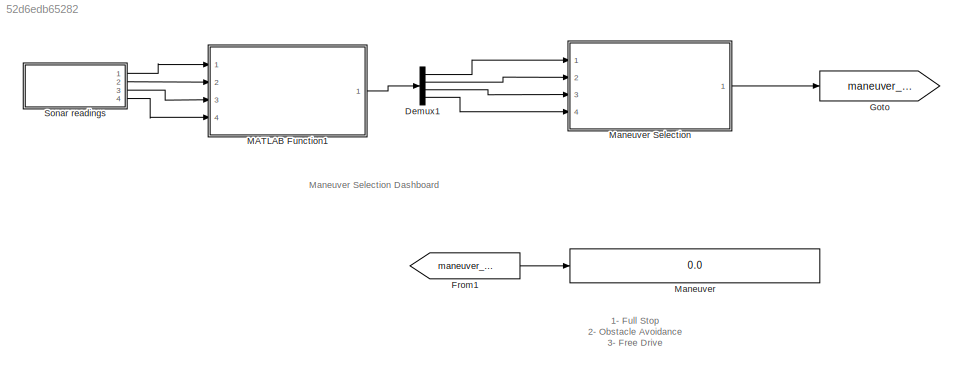
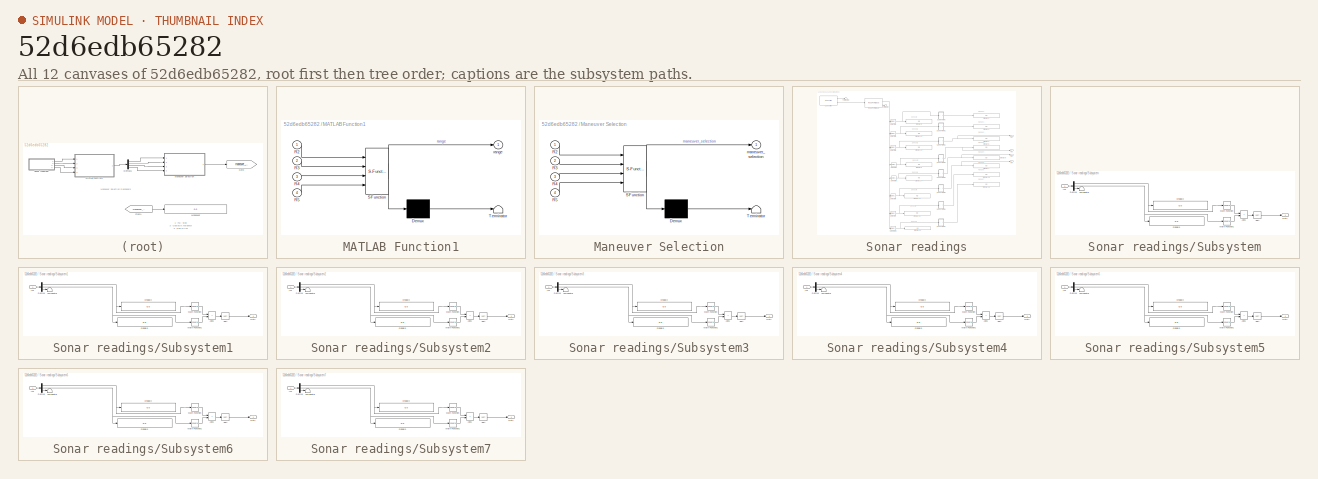
[diagram: thumbnail index - all 12 canvases of the model, root first then tree order]
MODEL slx_52d6edb65282
KIND model
CONFIG AbsTol = auto
CONFIG EnableMultiTasking = off
CONFIG FixedStep = auto
CONFIG MaxStep = auto
CONFIG MinStep = auto
CONFIG RelTol = 1e-3
CONFIG SampleTimeConstraint = Unconstrained
CONFIG SolverName = FixedStepAuto
CONFIG StartTime = 0.0
CONFIG StopTime = inf
BLOCK [Demux] Demux1
  Ports = [1, 4]
BLOCK [From] From1
  GotoTag = maneuver_selection
BLOCK [Goto] Goto
  GotoTag = maneuver_selection
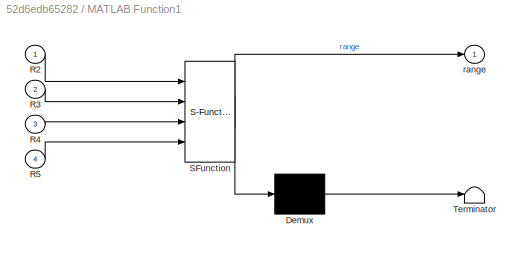
BLOCK [SubSystem] MATLAB Function1
  ErrorFcn = Stateflow.Translate.translate
  PermitHierarchicalResolution = ExplicitOnly
  Ports = [4, 1]
  RequestExecContextInheritance = off
  SFBlockType = MATLAB Function
  TreatAsAtomicUnit = on
BLOCK [Demux] MATLAB Function1/ Demux 
  Outputs = 1
  Ports = [1, 1]
BLOCK [S-Function] MATLAB Function1/ SFunction 
  EnableBusSupport = on
  FunctionName = sf_sfun
  PortCounts = [4 2]
  Ports = [4, 2]
  SFcnIsStateOwnerBlock = off
  SFunctionDeploymentMode = off
  Tag = Stateflow S-Function 6
BLOCK [Terminator] MATLAB Function1/ Terminator 
BLOCK [Inport] MATLAB Function1/R2
BLOCK [Inport] MATLAB Function1/R3
  Port = 2
BLOCK [Inport] MATLAB Function1/R4
  Port = 3
BLOCK [Inport] MATLAB Function1/R5
  Port = 4
BLOCK [Outport] MATLAB Function1/range
BLOCK [Display] Maneuver
  Decimation = 1
  Ports = [1]
BLOCK [SubSystem] Maneuver Selection
  ErrorFcn = Stateflow.Translate.translate
  PermitHierarchicalResolution = ExplicitOnly
  Ports = [4, 1]
  RequestExecContextInheritance = off
  SFBlockType = Chart
  TreatAsAtomicUnit = on
BLOCK [Demux] Maneuver Selection/ Demux 
  Outputs = 1
  Ports = [1, 1]
BLOCK [S-Function] Maneuver Selection/ SFunction 
  EnableBusSupport = on
  FunctionName = sf_sfun
  PortCounts = [4 2]
  Ports = [4, 2]
  SFcnIsStateOwnerBlock = off
  SFunctionDeploymentMode = off
  Tag = Stateflow S-Function 3
BLOCK [Terminator] Maneuver Selection/ Terminator 
BLOCK [Inport] Maneuver Selection/R2
BLOCK [Inport] Maneuver Selection/R3
  Port = 2
BLOCK [Inport] Maneuver Selection/R4
  Port = 3
BLOCK [Inport] Maneuver Selection/R5
  Port = 4
BLOCK [Outport] Maneuver Selection/maneuver_selection
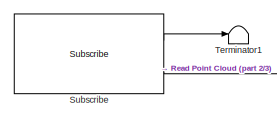
[diagram: Sonar readings - part 1/3, top left region]
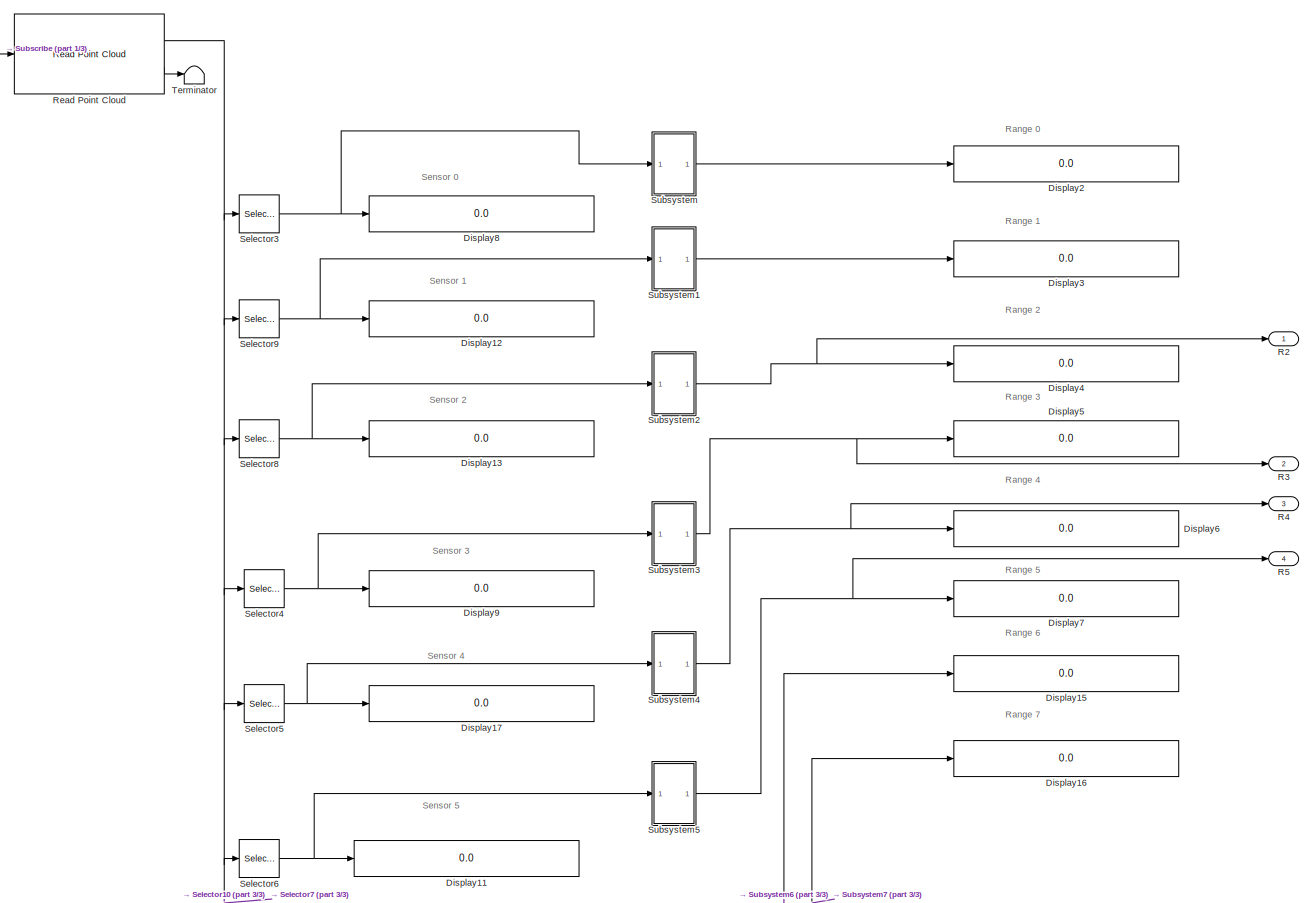
[diagram: Sonar readings - part 2/3, most of the canvas]
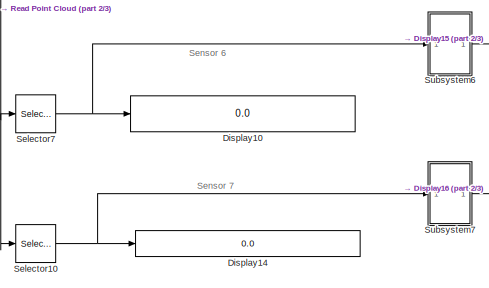
[diagram: Sonar readings - part 3/3, bottom center region]
BLOCK [SubSystem] Sonar readings
  Ports = [0, 4]
  RequestExecContextInheritance = off
BLOCK [Display] Sonar readings/Display10
  Decimation = 1
  Ports = [1]
BLOCK [Display] Sonar readings/Display11
  Decimation = 1
  Ports = [1]
BLOCK [Display] Sonar readings/Display12
  Decimation = 1
  Ports = [1]
BLOCK [Display] Sonar readings/Display13
  Decimation = 1
  Ports = [1]
BLOCK [Display] Sonar readings/Display14
  Decimation = 1
  Ports = [1]
BLOCK [Display] Sonar readings/Display15
  Decimation = 1
  Ports = [1]
BLOCK [Display] Sonar readings/Display16
  Decimation = 1
  Ports = [1]
BLOCK [Display] Sonar readings/Display17
  Decimation = 1
  Ports = [1]
BLOCK [Display] Sonar readings/Display2
  Decimation = 1
  Ports = [1]
BLOCK [Display] Sonar readings/Display3
  Decimation = 1
  Ports = [1]
BLOCK [Display] Sonar readings/Display4
  Decimation = 1
  Ports = [1]
BLOCK [Display] Sonar readings/Display5
  Decimation = 1
  Ports = [1]
BLOCK [Display] Sonar readings/Display6
  Decimation = 1
  Ports = [1]
BLOCK [Display] Sonar readings/Display7
  Decimation = 1
  Ports = [1]
BLOCK [Display] Sonar readings/Display8
  Decimation = 1
  Ports = [1]
BLOCK [Display] Sonar readings/Display9
  Decimation = 1
  Ports = [1]
BLOCK [Outport] Sonar readings/R2
BLOCK [Outport] Sonar readings/R3
  Port = 2
BLOCK [Outport] Sonar readings/R4
  Port = 3
BLOCK [Outport] Sonar readings/R5
  Port = 4
BLOCK [Reference] Sonar readings/Read Point Cloud  REF=robotlib/Read Point Cloud
  Ports = [1, 2]
  SourceBlock = robotlib/Read Point Cloud
  SourceProductBaseCode = RR
  SourceType = ros.slros.internal.block.ReadPointCloud
BLOCK [Selector] Sonar readings/Selector10
  IndexOptions = Starting index (dialog),Starting index (dialog)
  Indices = 8,1
  InputPortWidth = 6
  NumberOfDimensions = 2
  OutputSizes = 1,3
  Ports = [1, 1]
BLOCK [Selector] Sonar readings/Selector3
  IndexOptions = Starting index (dialog),Starting index (dialog)
  Indices = 1,1
  InputPortWidth = 6
  NumberOfDimensions = 2
  OutputSizes = 1,3
  Ports = [1, 1]
BLOCK [Selector] Sonar readings/Selector4
  IndexOptions = Starting index (dialog),Starting index (dialog)
  Indices = 4,1
  InputPortWidth = 6
  NumberOfDimensions = 2
  OutputSizes = 1,3
  Ports = [1, 1]
BLOCK [Selector] Sonar readings/Selector5
  IndexOptions = Starting index (dialog),Starting index (dialog)
  Indices = 5,1
  InputPortWidth = 6
  NumberOfDimensions = 2
  OutputSizes = 1,3
  Ports = [1, 1]
BLOCK [Selector] Sonar readings/Selector6
  IndexOptions = Starting index (dialog),Starting index (dialog)
  Indices = 6,1
  InputPortWidth = 6
  NumberOfDimensions = 2
  OutputSizes = 1,3
  Ports = [1, 1]
BLOCK [Selector] Sonar readings/Selector7
  IndexOptions = Starting index (dialog),Starting index (dialog)
  Indices = 7,1
  InputPortWidth = 6
  NumberOfDimensions = 2
  OutputSizes = 1,3
  Ports = [1, 1]
BLOCK [Selector] Sonar readings/Selector8
  IndexOptions = Starting index (dialog),Starting index (dialog)
  Indices = 3,1
  InputPortWidth = 6
  NumberOfDimensions = 2
  OutputSizes = 1,3
  Ports = [1, 1]
BLOCK [Selector] Sonar readings/Selector9
  IndexOptions = Starting index (dialog),Starting index (dialog)
  Indices = 2,1
  InputPortWidth = 6
  NumberOfDimensions = 2
  OutputSizes = 1,3
  Ports = [1, 1]
BLOCK [Reference] Sonar readings/Subscribe  REF=robotlib/Subscribe
  Ports = [0, 2]
  SourceBlock = robotlib/Subscribe
  SourceProductBaseCode = RR
  SourceType = ROS Subscribe
BLOCK [SubSystem] Sonar readings/Subsystem
  Ports = [1, 1]
  RequestExecContextInheritance = off
BLOCK [Sum] Sonar readings/Subsystem/Add1
  IconShape = rectangular
  Ports = [2, 1]
BLOCK [Demux] Sonar readings/Subsystem/Demux
  Outputs = 3
  Ports = [1, 3]
BLOCK [Display] Sonar readings/Subsystem/Display2
  Decimation = 1
  Ports = [1]
BLOCK [Display] Sonar readings/Subsystem/Display3
  Decimation = 1
  Ports = [1]
BLOCK [Inport] Sonar readings/Subsystem/In1
BLOCK [Math] Sonar readings/Subsystem/Math Function
  Operator = square
  Ports = [1, 1]
BLOCK [Math] Sonar readings/Subsystem/Math Function1
  Operator = square
  Ports = [1, 1]
BLOCK [Outport] Sonar readings/Subsystem/Out1
BLOCK [Sqrt] Sonar readings/Subsystem/Sqrt
BLOCK [Terminator] Sonar readings/Subsystem/Terminator
BLOCK [SubSystem] Sonar readings/Subsystem1
  Ports = [1, 1]
  RequestExecContextInheritance = off
BLOCK [Sum] Sonar readings/Subsystem1/Add1
  IconShape = rectangular
  Ports = [2, 1]
BLOCK [Demux] Sonar readings/Subsystem1/Demux
  Outputs = 3
  Ports = [1, 3]
BLOCK [Display] Sonar readings/Subsystem1/Display2
  Decimation = 1
  Ports = [1]
BLOCK [Display] Sonar readings/Subsystem1/Display3
  Decimation = 1
  Ports = [1]
BLOCK [Inport] Sonar readings/Subsystem1/In1
BLOCK [Math] Sonar readings/Subsystem1/Math Function
  Operator = square
  Ports = [1, 1]
BLOCK [Math] Sonar readings/Subsystem1/Math Function1
  Operator = square
  Ports = [1, 1]
BLOCK [Outport] Sonar readings/Subsystem1/Out1
BLOCK [Sqrt] Sonar readings/Subsystem1/Sqrt
BLOCK [Terminator] Sonar readings/Subsystem1/Terminator
BLOCK [SubSystem] Sonar readings/Subsystem2
  Ports = [1, 1]
  RequestExecContextInheritance = off
BLOCK [Sum] Sonar readings/Subsystem2/Add1
  IconShape = rectangular
  Ports = [2, 1]
BLOCK [Demux] Sonar readings/Subsystem2/Demux
  Outputs = 3
  Ports = [1, 3]
BLOCK [Display] Sonar readings/Subsystem2/Display2
  Decimation = 1
  Ports = [1]
BLOCK [Display] Sonar readings/Subsystem2/Display3
  Decimation = 1
  Ports = [1]
BLOCK [Inport] Sonar readings/Subsystem2/In1
BLOCK [Math] Sonar readings/Subsystem2/Math Function
  Operator = square
  Ports = [1, 1]
BLOCK [Math] Sonar readings/Subsystem2/Math Function1
  Operator = square
  Ports = [1, 1]
BLOCK [Outport] Sonar readings/Subsystem2/Out1
BLOCK [Sqrt] Sonar readings/Subsystem2/Sqrt
BLOCK [Terminator] Sonar readings/Subsystem2/Terminator
BLOCK [SubSystem] Sonar readings/Subsystem3
  Ports = [1, 1]
  RequestExecContextInheritance = off
BLOCK [Sum] Sonar readings/Subsystem3/Add1
  IconShape = rectangular
  Ports = [2, 1]
BLOCK [Demux] Sonar readings/Subsystem3/Demux
  Outputs = 3
  Ports = [1, 3]
BLOCK [Display] Sonar readings/Subsystem3/Display2
  Decimation = 1
  Ports = [1]
BLOCK [Display] Sonar readings/Subsystem3/Display3
  Decimation = 1
  Ports = [1]
BLOCK [Inport] Sonar readings/Subsystem3/In1
BLOCK [Math] Sonar readings/Subsystem3/Math Function
  Operator = square
  Ports = [1, 1]
BLOCK [Math] Sonar readings/Subsystem3/Math Function1
  Operator = square
  Ports = [1, 1]
BLOCK [Outport] Sonar readings/Subsystem3/Out1
BLOCK [Sqrt] Sonar readings/Subsystem3/Sqrt
BLOCK [Terminator] Sonar readings/Subsystem3/Terminator
BLOCK [SubSystem] Sonar readings/Subsystem4
  Ports = [1, 1]
  RequestExecContextInheritance = off
BLOCK [Sum] Sonar readings/Subsystem4/Add1
  IconShape = rectangular
  Ports = [2, 1]
BLOCK [Demux] Sonar readings/Subsystem4/Demux
  Outputs = 3
  Ports = [1, 3]
BLOCK [Display] Sonar readings/Subsystem4/Display2
  Decimation = 1
  Ports = [1]
BLOCK [Display] Sonar readings/Subsystem4/Display3
  Decimation = 1
  Ports = [1]
BLOCK [Inport] Sonar readings/Subsystem4/In1
BLOCK [Math] Sonar readings/Subsystem4/Math Function
  Operator = square
  Ports = [1, 1]
BLOCK [Math] Sonar readings/Subsystem4/Math Function1
  Operator = square
  Ports = [1, 1]
BLOCK [Outport] Sonar readings/Subsystem4/Out1
BLOCK [Sqrt] Sonar readings/Subsystem4/Sqrt
BLOCK [Terminator] Sonar readings/Subsystem4/Terminator
BLOCK [SubSystem] Sonar readings/Subsystem5
  Ports = [1, 1]
  RequestExecContextInheritance = off
BLOCK [Sum] Sonar readings/Subsystem5/Add1
  IconShape = rectangular
  Ports = [2, 1]
BLOCK [Demux] Sonar readings/Subsystem5/Demux
  Outputs = 3
  Ports = [1, 3]
BLOCK [Display] Sonar readings/Subsystem5/Display2
  Decimation = 1
  Ports = [1]
BLOCK [Display] Sonar readings/Subsystem5/Display3
  Decimation = 1
  Ports = [1]
BLOCK [Inport] Sonar readings/Subsystem5/In1
BLOCK [Math] Sonar readings/Subsystem5/Math Function
  Operator = square
  Ports = [1, 1]
BLOCK [Math] Sonar readings/Subsystem5/Math Function1
  Operator = square
  Ports = [1, 1]
BLOCK [Outport] Sonar readings/Subsystem5/Out1
BLOCK [Sqrt] Sonar readings/Subsystem5/Sqrt
BLOCK [Terminator] Sonar readings/Subsystem5/Terminator
BLOCK [SubSystem] Sonar readings/Subsystem6
  Ports = [1, 1]
  RequestExecContextInheritance = off
BLOCK [Sum] Sonar readings/Subsystem6/Add1
  IconShape = rectangular
  Ports = [2, 1]
BLOCK [Demux] Sonar readings/Subsystem6/Demux
  Outputs = 3
  Ports = [1, 3]
BLOCK [Display] Sonar readings/Subsystem6/Display2
  Decimation = 1
  Ports = [1]
BLOCK [Display] Sonar readings/Subsystem6/Display3
  Decimation = 1
  Ports = [1]
BLOCK [Inport] Sonar readings/Subsystem6/In1
BLOCK [Math] Sonar readings/Subsystem6/Math Function
  Operator = square
  Ports = [1, 1]
BLOCK [Math] Sonar readings/Subsystem6/Math Function1
  Operator = square
  Ports = [1, 1]
BLOCK [Outport] Sonar readings/Subsystem6/Out1
BLOCK [Sqrt] Sonar readings/Subsystem6/Sqrt
BLOCK [Terminator] Sonar readings/Subsystem6/Terminator
BLOCK [SubSystem] Sonar readings/Subsystem7
  Ports = [1, 1]
  RequestExecContextInheritance = off
BLOCK [Sum] Sonar readings/Subsystem7/Add1
  IconShape = rectangular
  Ports = [2, 1]
BLOCK [Demux] Sonar readings/Subsystem7/Demux
  Outputs = 3
  Ports = [1, 3]
BLOCK [Display] Sonar readings/Subsystem7/Display2
  Decimation = 1
  Ports = [1]
BLOCK [Display] Sonar readings/Subsystem7/Display3
  Decimation = 1
  Ports = [1]
BLOCK [Inport] Sonar readings/Subsystem7/In1
BLOCK [Math] Sonar readings/Subsystem7/Math Function
  Operator = square
  Ports = [1, 1]
BLOCK [Math] Sonar readings/Subsystem7/Math Function1
  Operator = square
  Ports = [1, 1]
BLOCK [Outport] Sonar readings/Subsystem7/Out1
BLOCK [Sqrt] Sonar readings/Subsystem7/Sqrt
BLOCK [Terminator] Sonar readings/Subsystem7/Terminator
BLOCK [Terminator] Sonar readings/Terminator
BLOCK [Terminator] Sonar readings/Terminator1
ANNOTATION (root): 1- Full Stop 2- Obstacle Avoidance 3- Free Drive
ANNOTATION (root): Maneuver Selection Dashboard
ANNOTATION Sonar readings: Range 0
ANNOTATION Sonar readings: Range 1
ANNOTATION Sonar readings: Range 2
ANNOTATION Sonar readings: Range 3
ANNOTATION Sonar readings: Range 4
ANNOTATION Sonar readings: Range 5
ANNOTATION Sonar readings: Range 6
ANNOTATION Sonar readings: Range 7
ANNOTATION Sonar readings: Sensor 0
ANNOTATION Sonar readings: Sensor 1
ANNOTATION Sonar readings: Sensor 2
ANNOTATION Sonar readings: Sensor 3
ANNOTATION Sonar readings: Sensor 4
ANNOTATION Sonar readings: Sensor 5
ANNOTATION Sonar readings: Sensor 6
ANNOTATION Sonar readings: Sensor 7
LINE Demux1:1 -> Maneuver Selection:1
LINE Demux1:2 -> Maneuver Selection:2
LINE Demux1:3 -> Maneuver Selection:3
LINE Demux1:4 -> Maneuver Selection:4
LINE From1:1 -> Maneuver:1
LINE MATLAB Function1:1 -> Demux1:1
LINE Maneuver Selection:1 -> Goto:1
NET Sonar readings/Read Point Cloud:1 -> Sonar readings/Selector10:1, Sonar readings/Selector3:1, Sonar readings/Selector4:1, Sonar readings/Selector5:1, Sonar readings/Selector6:1, Sonar readings/Selector7:1, Sonar readings/Selector8:1, Sonar readings/Selector9:1
LINE Sonar readings/Read Point Cloud:2 -> Sonar readings/Terminator:1
NET Sonar readings/Selector10:1 -> Sonar readings/Display14:1, Sonar readings/Subsystem7:1
NET Sonar readings/Selector3:1 -> Sonar readings/Display8:1, Sonar readings/Subsystem:1
NET Sonar readings/Selector4:1 -> Sonar readings/Display9:1, Sonar readings/Subsystem3:1
NET Sonar readings/Selector5:1 -> Sonar readings/Display17:1, Sonar readings/Subsystem4:1
NET Sonar readings/Selector6:1 -> Sonar readings/Display11:1, Sonar readings/Subsystem5:1
NET Sonar readings/Selector7:1 -> Sonar readings/Display10:1, Sonar readings/Subsystem6:1
NET Sonar readings/Selector8:1 -> Sonar readings/Display13:1, Sonar readings/Subsystem2:1
NET Sonar readings/Selector9:1 -> Sonar readings/Display12:1, Sonar readings/Subsystem1:1
LINE Sonar readings/Subscribe:1 -> Sonar readings/Terminator1:1
LINE Sonar readings/Subscribe:2 -> Sonar readings/Read Point Cloud:1
LINE Sonar readings/Subsystem/Add1:1 -> Sonar readings/Subsystem/Sqrt:1
NET Sonar readings/Subsystem/Demux:1 -> Sonar readings/Subsystem/Display2:1, Sonar readings/Subsystem/Math Function:1
NET Sonar readings/Subsystem/Demux:2 -> Sonar readings/Subsystem/Display3:1, Sonar readings/Subsystem/Math Function1:1
LINE Sonar readings/Subsystem/Demux:3 -> Sonar readings/Subsystem/Terminator:1
LINE Sonar readings/Subsystem/In1:1 -> Sonar readings/Subsystem/Demux:1
LINE Sonar readings/Subsystem/Math Function1:1 -> Sonar readings/Subsystem/Add1:2
LINE Sonar readings/Subsystem/Math Function:1 -> Sonar readings/Subsystem/Add1:1
LINE Sonar readings/Subsystem/Sqrt:1 -> Sonar readings/Subsystem/Out1:1
LINE Sonar readings/Subsystem1/Add1:1 -> Sonar readings/Subsystem1/Sqrt:1
NET Sonar readings/Subsystem1/Demux:1 -> Sonar readings/Subsystem1/Display2:1, Sonar readings/Subsystem1/Math Function:1
NET Sonar readings/Subsystem1/Demux:2 -> Sonar readings/Subsystem1/Display3:1, Sonar readings/Subsystem1/Math Function1:1
LINE Sonar readings/Subsystem1/Demux:3 -> Sonar readings/Subsystem1/Terminator:1
LINE Sonar readings/Subsystem1/In1:1 -> Sonar readings/Subsystem1/Demux:1
LINE Sonar readings/Subsystem1/Math Function1:1 -> Sonar readings/Subsystem1/Add1:2
LINE Sonar readings/Subsystem1/Math Function:1 -> Sonar readings/Subsystem1/Add1:1
LINE Sonar readings/Subsystem1/Sqrt:1 -> Sonar readings/Subsystem1/Out1:1
LINE Sonar readings/Subsystem1:1 -> Sonar readings/Display3:1
LINE Sonar readings/Subsystem2/Add1:1 -> Sonar readings/Subsystem2/Sqrt:1
NET Sonar readings/Subsystem2/Demux:1 -> Sonar readings/Subsystem2/Display2:1, Sonar readings/Subsystem2/Math Function:1
NET Sonar readings/Subsystem2/Demux:2 -> Sonar readings/Subsystem2/Display3:1, Sonar readings/Subsystem2/Math Function1:1
LINE Sonar readings/Subsystem2/Demux:3 -> Sonar readings/Subsystem2/Terminator:1
LINE Sonar readings/Subsystem2/In1:1 -> Sonar readings/Subsystem2/Demux:1
LINE Sonar readings/Subsystem2/Math Function1:1 -> Sonar readings/Subsystem2/Add1:2
LINE Sonar readings/Subsystem2/Math Function:1 -> Sonar readings/Subsystem2/Add1:1
LINE Sonar readings/Subsystem2/Sqrt:1 -> Sonar readings/Subsystem2/Out1:1
NET Sonar readings/Subsystem2:1 -> Sonar readings/Display4:1, Sonar readings/R2:1
LINE Sonar readings/Subsystem3/Add1:1 -> Sonar readings/Subsystem3/Sqrt:1
NET Sonar readings/Subsystem3/Demux:1 -> Sonar readings/Subsystem3/Display2:1, Sonar readings/Subsystem3/Math Function:1
NET Sonar readings/Subsystem3/Demux:2 -> Sonar readings/Subsystem3/Display3:1, Sonar readings/Subsystem3/Math Function1:1
LINE Sonar readings/Subsystem3/Demux:3 -> Sonar readings/Subsystem3/Terminator:1
LINE Sonar readings/Subsystem3/In1:1 -> Sonar readings/Subsystem3/Demux:1
LINE Sonar readings/Subsystem3/Math Function1:1 -> Sonar readings/Subsystem3/Add1:2
LINE Sonar readings/Subsystem3/Math Function:1 -> Sonar readings/Subsystem3/Add1:1
LINE Sonar readings/Subsystem3/Sqrt:1 -> Sonar readings/Subsystem3/Out1:1
NET Sonar readings/Subsystem3:1 -> Sonar readings/Display5:1, Sonar readings/R3:1
LINE Sonar readings/Subsystem4/Add1:1 -> Sonar readings/Subsystem4/Sqrt:1
NET Sonar readings/Subsystem4/Demux:1 -> Sonar readings/Subsystem4/Display2:1, Sonar readings/Subsystem4/Math Function:1
NET Sonar readings/Subsystem4/Demux:2 -> Sonar readings/Subsystem4/Display3:1, Sonar readings/Subsystem4/Math Function1:1
LINE Sonar readings/Subsystem4/Demux:3 -> Sonar readings/Subsystem4/Terminator:1
LINE Sonar readings/Subsystem4/In1:1 -> Sonar readings/Subsystem4/Demux:1
LINE Sonar readings/Subsystem4/Math Function1:1 -> Sonar readings/Subsystem4/Add1:2
LINE Sonar readings/Subsystem4/Math Function:1 -> Sonar readings/Subsystem4/Add1:1
LINE Sonar readings/Subsystem4/Sqrt:1 -> Sonar readings/Subsystem4/Out1:1
NET Sonar readings/Subsystem4:1 -> Sonar readings/Display6:1, Sonar readings/R4:1
LINE Sonar readings/Subsystem5/Add1:1 -> Sonar readings/Subsystem5/Sqrt:1
NET Sonar readings/Subsystem5/Demux:1 -> Sonar readings/Subsystem5/Display2:1, Sonar readings/Subsystem5/Math Function:1
NET Sonar readings/Subsystem5/Demux:2 -> Sonar readings/Subsystem5/Display3:1, Sonar readings/Subsystem5/Math Function1:1
LINE Sonar readings/Subsystem5/Demux:3 -> Sonar readings/Subsystem5/Terminator:1
LINE Sonar readings/Subsystem5/In1:1 -> Sonar readings/Subsystem5/Demux:1
LINE Sonar readings/Subsystem5/Math Function1:1 -> Sonar readings/Subsystem5/Add1:2
LINE Sonar readings/Subsystem5/Math Function:1 -> Sonar readings/Subsystem5/Add1:1
LINE Sonar readings/Subsystem5/Sqrt:1 -> Sonar readings/Subsystem5/Out1:1
NET Sonar readings/Subsystem5:1 -> Sonar readings/Display7:1, Sonar readings/R5:1
LINE Sonar readings/Subsystem6/Add1:1 -> Sonar readings/Subsystem6/Sqrt:1
NET Sonar readings/Subsystem6/Demux:1 -> Sonar readings/Subsystem6/Display2:1, Sonar readings/Subsystem6/Math Function:1
NET Sonar readings/Subsystem6/Demux:2 -> Sonar readings/Subsystem6/Display3:1, Sonar readings/Subsystem6/Math Function1:1
LINE Sonar readings/Subsystem6/Demux:3 -> Sonar readings/Subsystem6/Terminator:1
LINE Sonar readings/Subsystem6/In1:1 -> Sonar readings/Subsystem6/Demux:1
LINE Sonar readings/Subsystem6/Math Function1:1 -> Sonar readings/Subsystem6/Add1:2
LINE Sonar readings/Subsystem6/Math Function:1 -> Sonar readings/Subsystem6/Add1:1
LINE Sonar readings/Subsystem6/Sqrt:1 -> Sonar readings/Subsystem6/Out1:1
LINE Sonar readings/Subsystem6:1 -> Sonar readings/Display15:1
LINE Sonar readings/Subsystem7/Add1:1 -> Sonar readings/Subsystem7/Sqrt:1
NET Sonar readings/Subsystem7/Demux:1 -> Sonar readings/Subsystem7/Display2:1, Sonar readings/Subsystem7/Math Function:1
NET Sonar readings/Subsystem7/Demux:2 -> Sonar readings/Subsystem7/Display3:1, Sonar readings/Subsystem7/Math Function1:1
LINE Sonar readings/Subsystem7/Demux:3 -> Sonar readings/Subsystem7/Terminator:1
LINE Sonar readings/Subsystem7/In1:1 -> Sonar readings/Subsystem7/Demux:1
LINE Sonar readings/Subsystem7/Math Function1:1 -> Sonar readings/Subsystem7/Add1:2
LINE Sonar readings/Subsystem7/Math Function:1 -> Sonar readings/Subsystem7/Add1:1
LINE Sonar readings/Subsystem7/Sqrt:1 -> Sonar readings/Subsystem7/Out1:1
LINE Sonar readings/Subsystem7:1 -> Sonar readings/Display16:1
LINE Sonar readings/Subsystem:1 -> Sonar readings/Display2:1
LINE Sonar readings:1 -> MATLAB Function1:1
LINE Sonar readings:2 -> MATLAB Function1:2
LINE Sonar readings:3 -> MATLAB Function1:3
LINE Sonar readings:4 -> MATLAB Function1:4
note: NET lines group one-source signal fan-out (src -> all destinations, sorted); 1:1 wires keep LINE
CHART Maneuver Selection states=0 transitions=10
CHART MATLAB Function1 states=1 transitions=1
  STATE_LABEL 'eML_blk_kernel()'
  STATE_LABEL 'SCRIPT:\nfunction range = sonarRanges(R2,R3,R4,R5)\nrange = [R2 R3 R4 R5];\nend\n'
CHART  states=0 transitions=0
CHART  states=0 transitions=0
